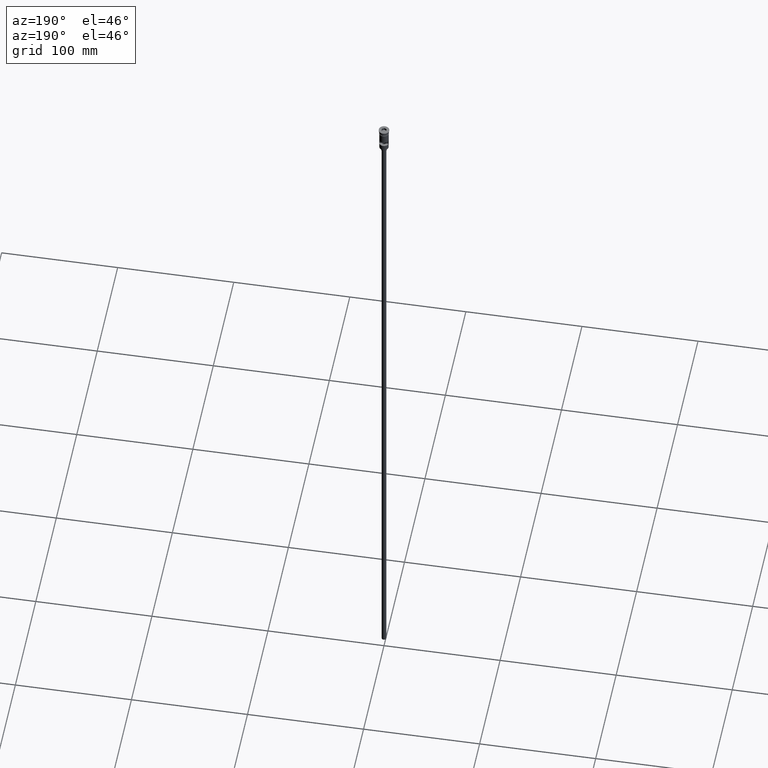
[diagram: clean part render]
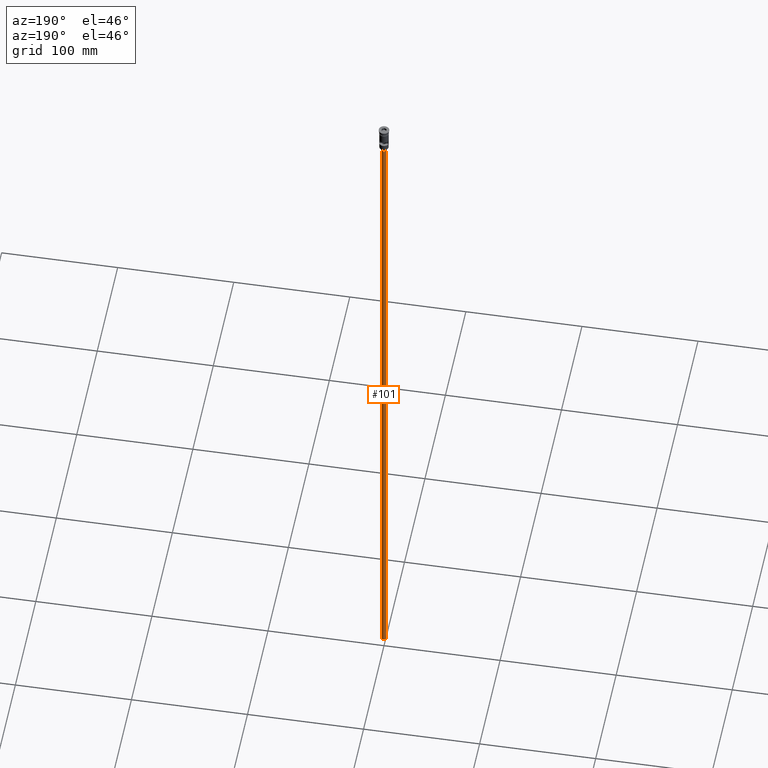
[diagram: same view with one face highlighted and labeled with its STEP entity id]
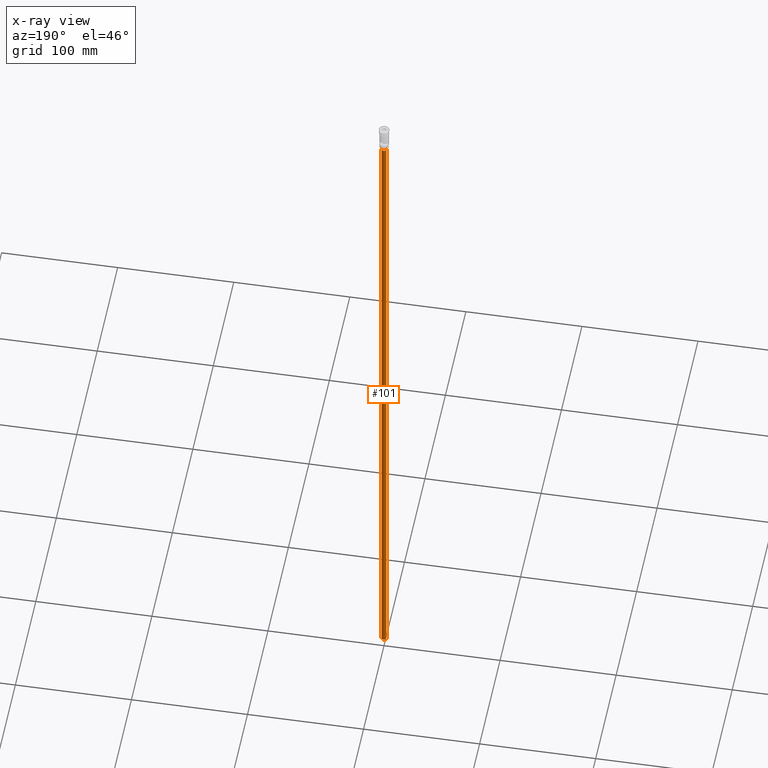
[diagram: x-ray of the same camera — body ghosted, the highlighted face saturated]
A machine part, auxiliary view. The second image highlights one B-rep face of the part: STEP entity #101.
The next image is the same camera in x-ray: the body ghosted, the highlighted face saturated — about 0% of this face is hidden behind the body in this view.
In plain terms, the highlighted cylindrical surface (edge-blend (fillet) strip) has radius 2 mm, axis along (-0, -0, 1).
Its self-contained STEP definition (entity closure, byte-faithful):
#45 = EDGE_CURVE ( 'NONE', #1061, #48, #933, .T. ) ;
#48 = VERTEX_POINT ( 'NONE', #103 ) ;
#52 = CARTESIAN_POINT ( 'NONE',  ( 0.000000000000000000, 0.000000000000000000, -23.49999999999999645 ) ) ;
#54 = CARTESIAN_POINT ( 'NONE',  ( 2.000000000000000000, 0.000000000000000000, -620.4999999999998863 ) ) ;
#79 = VERTEX_POINT ( 'NONE', #1449 ) ;
#101 = ADVANCED_FACE ( 'NONE', ( #836 ), #571, .T. ) ;
#103 = CARTESIAN_POINT ( 'NONE',  ( 2.000000000000000000, 0.000000000000000000, -23.49999999999999645 ) ) ;
#149 = EDGE_CURVE ( 'NONE', #1119, #1061, #1100, .T. ) ;
#202 = ORIENTED_EDGE ( 'NONE', *, *, #1469, .T. ) ;
#208 = CARTESIAN_POINT ( 'NONE',  ( 2.000000000000000000, 0.000000000000000000, -620.4999999999998863 ) ) ;
#225 = CARTESIAN_POINT ( 'NONE',  ( 0.000000000000000000, 0.000000000000000000, -620.4999999999998863 ) ) ;
#347 = DIRECTION ( 'NONE',  ( 1.000000000000000000, 0.000000000000000000, 0.000000000000000000 ) ) ;
#409 = DIRECTION ( 'NONE',  ( 0.000000000000000000, 0.000000000000000000, -1.000000000000000000 ) ) ;
#498 = CARTESIAN_POINT ( 'NONE',  ( -2.000000000000000000, 2.449293598294706414E-16, -620.4999999999998863 ) ) ;
#561 = LINE ( 'NONE', #815, #1120 ) ;
#571 = CYLINDRICAL_SURFACE ( 'NONE', #817, 2.000000000000000000 ) ;
#582 = DIRECTION ( 'NONE',  ( -0.000000000000000000, -0.000000000000000000, 1.000000000000000000 ) ) ;
#586 = ORIENTED_EDGE ( 'NONE', *, *, #1197, .T. ) ;
#706 = CARTESIAN_POINT ( 'NONE',  ( 0.000000000000000000, 0.000000000000000000, -620.4999999999998863 ) ) ;
#815 = CARTESIAN_POINT ( 'NONE',  ( -2.000000000000000000, 2.449293598294706414E-16, -620.4999999999998863 ) ) ;
#817 = AXIS2_PLACEMENT_3D ( 'NONE', #706, #582, #347 ) ;
#836 = FACE_OUTER_BOUND ( 'NONE', #1460, .T. ) ;
#860 = ORIENTED_EDGE ( 'NONE', *, *, #149, .F. ) ;
#933 = LINE ( 'NONE', #208, #1265 ) ;
#936 = ORIENTED_EDGE ( 'NONE', *, *, #45, .F. ) ;
#946 = DIRECTION ( 'NONE',  ( -0.000000000000000000, -0.000000000000000000, 1.000000000000000000 ) ) ;
#991 = DIRECTION ( 'NONE',  ( -1.000000000000000000, 0.000000000000000000, 0.000000000000000000 ) ) ;
#1061 = VERTEX_POINT ( 'NONE', #54 ) ;
#1100 = CIRCLE ( 'NONE', #1477, 2.000000000000000000 ) ;
#1119 = VERTEX_POINT ( 'NONE', #498 ) ;
#1120 = VECTOR ( 'NONE', #946, 1000.000000000000000 ) ;
#1148 = DIRECTION ( 'NONE',  ( -1.000000000000000000, 0.000000000000000000, 0.000000000000000000 ) ) ;
#1185 = DIRECTION ( 'NONE',  ( -0.000000000000000000, -0.000000000000000000, 1.000000000000000000 ) ) ;
#1197 = EDGE_CURVE ( 'NONE', #1119, #79, #561, .T. ) ;
#1210 = DIRECTION ( 'NONE',  ( 0.000000000000000000, 0.000000000000000000, -1.000000000000000000 ) ) ;
#1240 = AXIS2_PLACEMENT_3D ( 'NONE', #52, #409, #1148 ) ;
#1265 = VECTOR ( 'NONE', #1185, 1000.000000000000000 ) ;
#1326 = CIRCLE ( 'NONE', #1240, 2.000000000000000000 ) ;
#1449 = CARTESIAN_POINT ( 'NONE',  ( -2.000000000000000000, 2.449293598294706414E-16, -23.49999999999999645 ) ) ;
#1460 = EDGE_LOOP ( 'NONE', ( #860, #586, #202, #936 ) ) ;
#1469 = EDGE_CURVE ( 'NONE', #79, #48, #1326, .T. ) ;
#1477 = AXIS2_PLACEMENT_3D ( 'NONE', #225, #1210, #991 ) ;